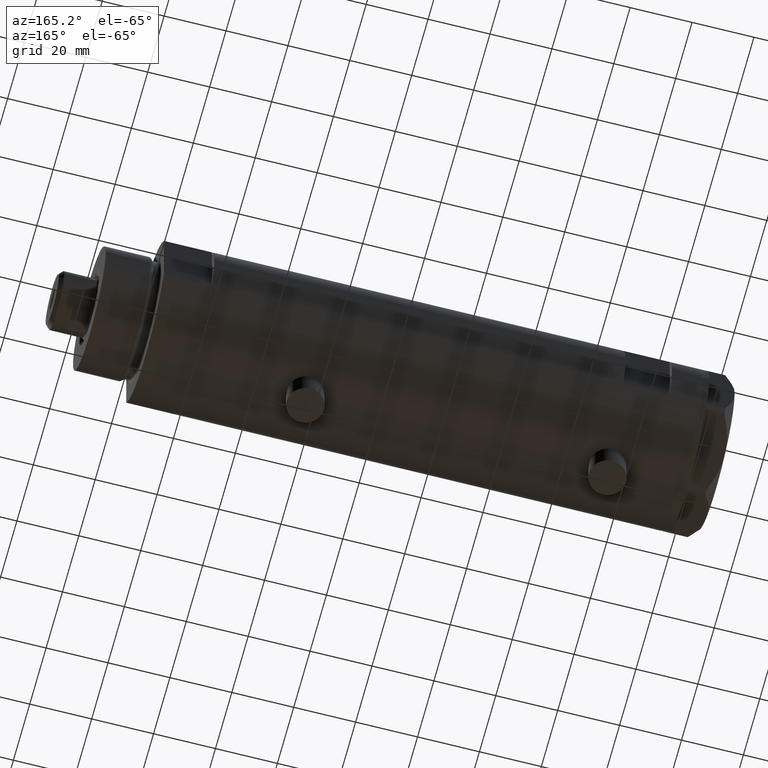
[diagram: clean part render]
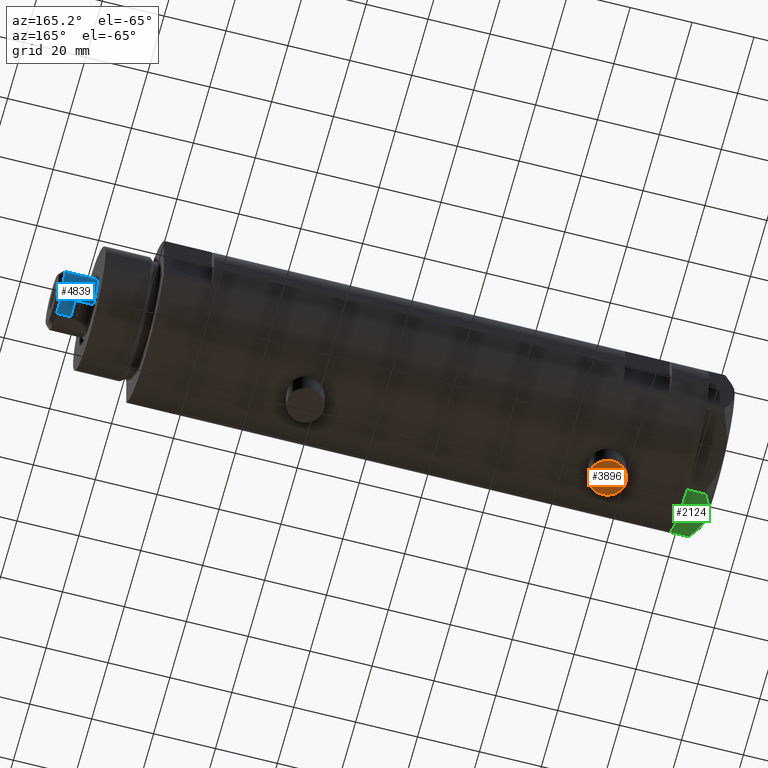
[diagram: same view with three faces highlighted in distinct colors, each labeled with its STEP entity id]
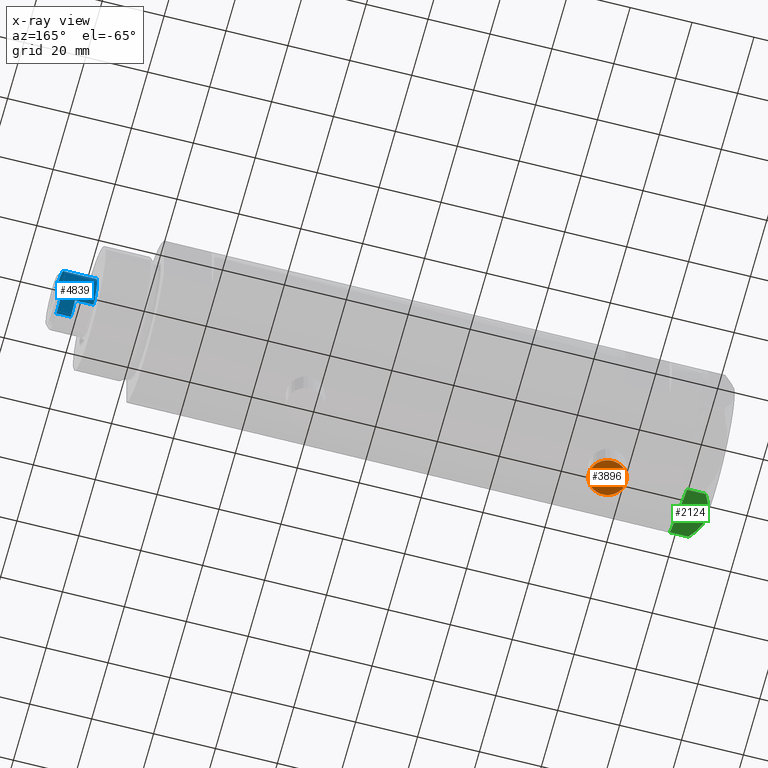
[diagram: x-ray of the same camera — body ghosted, the three highlighted faces saturated]
A machine part, auxiliary view with three faces highlighted in distinct colors.
The next image is the same camera in x-ray (body ghosted, the three faces saturated) — at least one of them is partly hidden behind the body in this view.
Their STEP definitions:

[orange] entity #3896 — the highlighted planar face has unit normal (-0, 0, -1).
#294 = EDGE_CURVE ( 'NONE', #1955, #1198, #4782, .T. ) ;
#433 = DIRECTION ( 'NONE',  ( 0.000000000000000000, 0.000000000000000000, 1.000000000000000000 ) ) ;
#666 = ORIENTED_EDGE ( 'NONE', *, *, #2968, .T. ) ;
#706 = CARTESIAN_POINT ( 'NONE',  ( -33.39999999999999858, 0.000000000000000000, 48.95000000000000995 ) ) ;
#797 = CARTESIAN_POINT ( 'NONE',  ( -33.39999999999999858, 0.000000000000000000, 54.95000000000000284 ) ) ;
#988 = AXIS2_PLACEMENT_3D ( 'NONE', #797, #1338, #433 ) ;
#1198 = VERTEX_POINT ( 'NONE', #706 ) ;
#1338 = DIRECTION ( 'NONE',  ( -1.000000000000000000, 0.000000000000000000, 0.000000000000000000 ) ) ;
#1493 = CIRCLE ( 'NONE', #2815, 5.999999999999998224 ) ;
#1849 = DIRECTION ( 'NONE',  ( -1.000000000000000000, 0.000000000000000000, 0.000000000000000000 ) ) ;
#1955 = VERTEX_POINT ( 'NONE', #2554 ) ;
#2223 = CARTESIAN_POINT ( 'NONE',  ( -33.39999999999999858, 0.000000000000000000, 54.95000000000000284 ) ) ;
#2554 = CARTESIAN_POINT ( 'NONE',  ( -33.39999999999999858, 7.347880794884107903E-16, 60.95000000000000284 ) ) ;
#2787 = PLANE ( 'NONE',  #4188 ) ;
#2815 = AXIS2_PLACEMENT_3D ( 'NONE', #2223, #1849, #3369 ) ;
#2968 = EDGE_CURVE ( 'NONE', #1198, #1955, #1493, .T. ) ;
#3009 = ORIENTED_EDGE ( 'NONE', *, *, #294, .T. ) ;
#3144 = DIRECTION ( 'NONE',  ( -1.000000000000000000, 0.000000000000000000, 0.000000000000000000 ) ) ;
#3369 = DIRECTION ( 'NONE',  ( 0.000000000000000000, 0.000000000000000000, 1.000000000000000000 ) ) ;
#3896 = ADVANCED_FACE ( 'NONE', ( #4255 ), #2787, .T. ) ;
#4188 = AXIS2_PLACEMENT_3D ( 'NONE', #4597, #3144, #4644 ) ;
#4230 = EDGE_LOOP ( 'NONE', ( #666, #3009 ) ) ;
#4255 = FACE_OUTER_BOUND ( 'NONE', #4230, .T. ) ;
#4597 = CARTESIAN_POINT ( 'NONE',  ( -33.39999999999999858, 0.000000000000000000, 54.95000000000000284 ) ) ;
#4644 = DIRECTION ( 'NONE',  ( 0.000000000000000000, 0.000000000000000000, 1.000000000000000000 ) ) ;
#4782 = CIRCLE ( 'NONE', #988, 5.999999999999998224 ) ;

[blue] entity #4839 — the highlighted cylindrical surface (edge-blend (fillet) strip) has radius 9.5 mm, axis along (-1, -0, 0).
#170 = ORIENTED_EDGE ( 'NONE', *, *, #3392, .T. ) ;
#208 = CARTESIAN_POINT ( 'NONE',  ( 7.982950582334830791, 5.149999999999999467, 167.6000000000000227 ) ) ;
#297 = CIRCLE ( 'NONE', #2741, 9.500000000000001776 ) ;
#341 = DIRECTION ( 'NONE',  ( -0.000000000000000000, -0.000000000000000000, -1.000000000000000000 ) ) ;
#403 = DIRECTION ( 'NONE',  ( 1.000000000000000000, 0.000000000000000000, 0.000000000000000000 ) ) ;
#455 = CIRCLE ( 'NONE', #762, 9.500000000000000000 ) ;
#509 = VERTEX_POINT ( 'NONE', #1227 ) ;
#689 = DIRECTION ( 'NONE',  ( 1.000000000000000000, 0.000000000000000000, 0.000000000000000000 ) ) ;
#717 = EDGE_CURVE ( 'NONE', #4173, #3285, #1473, .T. ) ;
#762 = AXIS2_PLACEMENT_3D ( 'NONE', #1994, #2046, #4704 ) ;
#801 = VERTEX_POINT ( 'NONE', #2662 ) ;
#839 = CARTESIAN_POINT ( 'NONE',  ( 0.000000000000000000, 0.000000000000000000, 173.6000000000000227 ) ) ;
#906 = VECTOR ( 'NONE', #3706, 1000.000000000000000 ) ;
#1143 = EDGE_CURVE ( 'NONE', #4628, #3285, #1474, .T. ) ;
#1227 = CARTESIAN_POINT ( 'NONE',  ( 9.500000000000000000, 1.163414459189985485E-15, 173.6000000000000227 ) ) ;
#1236 = VERTEX_POINT ( 'NONE', #4078 ) ;
#1313 = LINE ( 'NONE', #2431, #2436 ) ;
#1423 = CARTESIAN_POINT ( 'NONE',  ( -7.982950582334830791, 5.149999999999999467, 173.6000000000000227 ) ) ;
#1473 = CIRCLE ( 'NONE', #3125, 9.500000000000023093 ) ;
#1474 = LINE ( 'NONE', #2532, #906 ) ;
#1495 = VECTOR ( 'NONE', #341, 1000.000000000000000 ) ;
#1707 = ORIENTED_EDGE ( 'NONE', *, *, #2224, .T. ) ;
#1708 = LINE ( 'NONE', #3647, #3071 ) ;
#1718 = ORIENTED_EDGE ( 'NONE', *, *, #717, .T. ) ;
#1729 = AXIS2_PLACEMENT_3D ( 'NONE', #839, #3895, #1993 ) ;
#1796 = LINE ( 'NONE', #2268, #1495 ) ;
#1845 = DIRECTION ( 'NONE',  ( 0.000000000000000000, 0.000000000000000000, 1.000000000000000000 ) ) ;
#1893 = ORIENTED_EDGE ( 'NONE', *, *, #3082, .T. ) ;
#1925 = DIRECTION ( 'NONE',  ( 1.000000000000000000, 0.000000000000000000, 0.000000000000000000 ) ) ;
#1956 = AXIS2_PLACEMENT_3D ( 'NONE', #4092, #1845, #689 ) ;
#1979 = FACE_OUTER_BOUND ( 'NONE', #2905, .T. ) ;
#1993 = DIRECTION ( 'NONE',  ( -1.000000000000000000, 0.000000000000000000, 0.000000000000000000 ) ) ;
#1994 = CARTESIAN_POINT ( 'NONE',  ( 0.000000000000000000, 0.000000000000000000, 173.6000000000000227 ) ) ;
#2046 = DIRECTION ( 'NONE',  ( 0.000000000000000000, 0.000000000000000000, 1.000000000000000000 ) ) ;
#2224 = EDGE_CURVE ( 'NONE', #509, #801, #455, .T. ) ;
#2268 = CARTESIAN_POINT ( 'NONE',  ( -9.500000000000001776, 0.000000000000000000, 173.6000000000000227 ) ) ;
#2431 = CARTESIAN_POINT ( 'NONE',  ( 9.500000000000001776, 1.163414459189985682E-15, 173.6000000000000227 ) ) ;
#2436 = VECTOR ( 'NONE', #4752, 1000.000000000000000 ) ;
#2488 = CARTESIAN_POINT ( 'NONE',  ( 9.500000000000001776, 1.163414459189985682E-15, 178.2000000000000171 ) ) ;
#2532 = CARTESIAN_POINT ( 'NONE',  ( -7.982950582334830791, 5.149999999999999467, 173.6000000000000227 ) ) ;
#2662 = CARTESIAN_POINT ( 'NONE',  ( 7.982950582334830791, 5.149999999999999467, 173.6000000000000227 ) ) ;
#2690 = DIRECTION ( 'NONE',  ( 0.000000000000000000, 0.000000000000000000, 1.000000000000000000 ) ) ;
#2708 = ORIENTED_EDGE ( 'NONE', *, *, #4149, .T. ) ;
#2738 = CARTESIAN_POINT ( 'NONE',  ( 0.000000000000000000, 0.000000000000000000, 178.2000000000000171 ) ) ;
#2741 = AXIS2_PLACEMENT_3D ( 'NONE', #2738, #4666, #1925 ) ;
#2745 = VERTEX_POINT ( 'NONE', #2488 ) ;
#2905 = EDGE_LOOP ( 'NONE', ( #1893, #2708, #1707, #3006, #1718, #3354, #170, #3433 ) ) ;
#3006 = ORIENTED_EDGE ( 'NONE', *, *, #4153, .T. ) ;
#3071 = VECTOR ( 'NONE', #3992, 1000.000000000000000 ) ;
#3082 = EDGE_CURVE ( 'NONE', #4059, #2745, #297, .T. ) ;
#3125 = AXIS2_PLACEMENT_3D ( 'NONE', #3800, #2690, #403 ) ;
#3231 = EDGE_CURVE ( 'NONE', #4059, #1236, #1796, .T. ) ;
#3285 = VERTEX_POINT ( 'NONE', #4844 ) ;
#3354 = ORIENTED_EDGE ( 'NONE', *, *, #1143, .F. ) ;
#3392 = EDGE_CURVE ( 'NONE', #4628, #1236, #3471, .T. ) ;
#3433 = ORIENTED_EDGE ( 'NONE', *, *, #3231, .F. ) ;
#3471 = CIRCLE ( 'NONE', #1956, 9.500000000000000000 ) ;
#3647 = CARTESIAN_POINT ( 'NONE',  ( 7.982950582334830791, 5.149999999999999467, 173.6000000000000227 ) ) ;
#3665 = CARTESIAN_POINT ( 'NONE',  ( -9.500000000000001776, 0.000000000000000000, 178.2000000000000171 ) ) ;
#3706 = DIRECTION ( 'NONE',  ( -0.000000000000000000, -0.000000000000000000, -1.000000000000000000 ) ) ;
#3800 = CARTESIAN_POINT ( 'NONE',  ( 0.000000000000000000, 0.000000000000000000, 167.6000000000000227 ) ) ;
#3895 = DIRECTION ( 'NONE',  ( -0.000000000000000000, -0.000000000000000000, -1.000000000000000000 ) ) ;
#3992 = DIRECTION ( 'NONE',  ( -0.000000000000000000, -0.000000000000000000, -1.000000000000000000 ) ) ;
#4059 = VERTEX_POINT ( 'NONE', #3665 ) ;
#4078 = CARTESIAN_POINT ( 'NONE',  ( -9.500000000000000000, 0.000000000000000000, 173.6000000000000227 ) ) ;
#4092 = CARTESIAN_POINT ( 'NONE',  ( 0.000000000000000000, 0.000000000000000000, 173.6000000000000227 ) ) ;
#4149 = EDGE_CURVE ( 'NONE', #2745, #509, #1313, .T. ) ;
#4153 = EDGE_CURVE ( 'NONE', #801, #4173, #1708, .T. ) ;
#4173 = VERTEX_POINT ( 'NONE', #208 ) ;
#4600 = CYLINDRICAL_SURFACE ( 'NONE', #1729, 9.500000000000001776 ) ;
#4628 = VERTEX_POINT ( 'NONE', #1423 ) ;
#4666 = DIRECTION ( 'NONE',  ( 0.000000000000000000, 0.000000000000000000, -1.000000000000000000 ) ) ;
#4704 = DIRECTION ( 'NONE',  ( 1.000000000000000000, 0.000000000000000000, 0.000000000000000000 ) ) ;
#4752 = DIRECTION ( 'NONE',  ( -0.000000000000000000, -0.000000000000000000, -1.000000000000000000 ) ) ;
#4839 = ADVANCED_FACE ( 'NONE', ( #1979 ), #4600, .T. ) ;
#4844 = CARTESIAN_POINT ( 'NONE',  ( -7.982950582334829015, 5.150000000000040323, 167.6000000000000227 ) ) ;

[green] entity #2124 — the highlighted planar face has unit normal (0, 0.5, 0.866).
#29 = LINE ( 'NONE', #1886, #161 ) ;
#129 = CARTESIAN_POINT ( 'NONE',  ( -22.03005154776142760, 13.83905619136131904, 0.000000000000000000 ) ) ;
#161 = VECTOR ( 'NONE', #3736, 1000.000000000000000 ) ;
#167 = B_SPLINE_CURVE_WITH_KNOTS ( 'NONE', 3,
 ( #2127, #2212, #2236, #3916, #2329, #4605, #3898, #2120, #971, #3993 ),
 .UNSPECIFIED., .F., .F.,
 ( 4, 2, 2, 2, 4 ),
 ( 0.001228959670438516723, 0.007497079744270820564, 0.01063113978118697227, 0.01219816979964504812, 0.01376519981810312397 ),
 .UNSPECIFIED. ) ;
#171 = VERTEX_POINT ( 'NONE', #1527 ) ;
#228 = VERTEX_POINT ( 'NONE', #2647 ) ;
#359 = ORIENTED_EDGE ( 'NONE', *, *, #4580, .F. ) ;
#436 = CARTESIAN_POINT ( 'NONE',  ( -0.9699484522385775076, 25.99811238272273783, 9.000000000000000000 ) ) ;
#490 = VERTEX_POINT ( 'NONE', #129 ) ;
#521 = B_SPLINE_CURVE_WITH_KNOTS ( 'NONE', 3,
 ( #3959, #4323, #1748, #621, #931, #2520, #3213, #4746, #4715, #2473 ),
 .UNSPECIFIED., .F., .F.,
 ( 4, 2, 2, 2, 4 ),
 ( 0.01376519981810312397, 0.01998941321701588544, 0.02154546656674408145, 0.02310151991647227399, 0.02621362661592866600 ),
 .UNSPECIFIED. ) ;
#621 = CARTESIAN_POINT ( 'NONE',  ( -17.32831362639718975, 16.55360584592005679, 8.040681765829335248 ) ) ;
#724 = EDGE_CURVE ( 'NONE', #1786, #3246, #2622, .T. ) ;
#752 = VECTOR ( 'NONE', #2298, 1000.000000000000227 ) ;
#775 = DIRECTION ( 'NONE',  ( 0.000000000000000000, 0.000000000000000000, -1.000000000000000000 ) ) ;
#812 = CARTESIAN_POINT ( 'NONE',  ( 0.000000000000000000, 26.55811238272274366, 0.000000000000000000 ) ) ;
#820 = LINE ( 'NONE', #436, #1314 ) ;
#888 = EDGE_LOOP ( 'NONE', ( #2587, #3189, #2151, #359, #1659, #4421, #2547 ) ) ;
#931 = CARTESIAN_POINT ( 'NONE',  ( -17.77001848220191604, 16.29858742851882170, 7.892128867758443356 ) ) ;
#971 = CARTESIAN_POINT ( 'NONE',  ( -11.04134848610939557, 20.18338686205100885, 9.000000000000094147 ) ) ;
#1314 = VECTOR ( 'NONE', #775, 1000.000000000000000 ) ;
#1348 = CARTESIAN_POINT ( 'NONE',  ( 0.000000000000000000, 26.55811238272274366, 9.000000000000000000 ) ) ;
#1527 = CARTESIAN_POINT ( 'NONE',  ( -22.03005154776144181, 13.83905619136131371, 5.983800287807625295 ) ) ;
#1659 = ORIENTED_EDGE ( 'NONE', *, *, #2378, .T. ) ;
#1683 = DIRECTION ( 'NONE',  ( 0.5000000000000009992, -0.8660254037844381525, 0.000000000000000000 ) ) ;
#1748 = CARTESIAN_POINT ( 'NONE',  ( -15.11535457301033247, 17.83125835109856183, 8.707651728477001640 ) ) ;
#1780 = AXIS2_PLACEMENT_3D ( 'NONE', #1348, #1683, #3174 ) ;
#1786 = VERTEX_POINT ( 'NONE', #2343 ) ;
#1886 = CARTESIAN_POINT ( 'NONE',  ( -22.03005154776143115, 13.83905619136131726, 9.000000000000000000 ) ) ;
#2120 = CARTESIAN_POINT ( 'NONE',  ( -10.58093321976963175, 20.44920774001128549, 8.981686407609499767 ) ) ;
#2124 = ADVANCED_FACE ( 'NONE', ( #2774 ), #4287, .F. ) ;
#2127 = CARTESIAN_POINT ( 'NONE',  ( -0.9699484522384356211, 25.99811238272282310, 5.983800287807548912 ) ) ;
#2151 = ORIENTED_EDGE ( 'NONE', *, *, #3167, .F. ) ;
#2212 = CARTESIAN_POINT ( 'NONE',  ( -2.626494320835632390, 25.04170517956325881, 6.877782426143454586 ) ) ;
#2236 = CARTESIAN_POINT ( 'NONE',  ( -4.320186229909880105, 24.06385169993494699, 7.629374868826106493 ) ) ;
#2298 = DIRECTION ( 'NONE',  ( -0.8660254037844380415, -0.5000000000000008882, 0.000000000000000000 ) ) ;
#2323 = DIRECTION ( 'NONE',  ( -0.8660254037844380415, -0.5000000000000008882, 0.000000000000000000 ) ) ;
#2329 = CARTESIAN_POINT ( 'NONE',  ( -7.836767740116576952, 22.03355241838985279, 8.637313967156947214 ) ) ;
#2343 = CARTESIAN_POINT ( 'NONE',  ( -0.9699484522385772856, 25.99811238272273783, 0.000000000000000000 ) ) ;
#2378 = EDGE_CURVE ( 'NONE', #228, #1786, #820, .T. ) ;
#2413 = VERTEX_POINT ( 'NONE', #4233 ) ;
#2473 = CARTESIAN_POINT ( 'NONE',  ( -22.03005154776144181, 13.83905619136131371, 5.983800287807625295 ) ) ;
#2520 = CARTESIAN_POINT ( 'NONE',  ( -18.64279229058394804, 15.79469123530778951, 7.570552255229721084 ) ) ;
#2547 = ORIENTED_EDGE ( 'NONE', *, *, #4344, .T. ) ;
#2587 = ORIENTED_EDGE ( 'NONE', *, *, #4774, .T. ) ;
#2622 = LINE ( 'NONE', #812, #752 ) ;
#2647 = CARTESIAN_POINT ( 'NONE',  ( -0.9699484522384356211, 25.99811238272282310, 5.983800287807548912 ) ) ;
#2774 = FACE_OUTER_BOUND ( 'NONE', #888, .T. ) ;
#3140 = CARTESIAN_POINT ( 'NONE',  ( 0.000000000000000000, 26.55811238272274366, 0.000000000000000000 ) ) ;
#3167 = EDGE_CURVE ( 'NONE', #2413, #171, #521, .T. ) ;
#3174 = DIRECTION ( 'NONE',  ( 0.8660254037844380415, 0.5000000000000008882, 0.000000000000000000 ) ) ;
#3189 = ORIENTED_EDGE ( 'NONE', *, *, #4256, .T. ) ;
#3213 = CARTESIAN_POINT ( 'NONE',  ( -19.07486218896994856, 15.54523556316589961, 7.397272853991406549 ) ) ;
#3246 = VERTEX_POINT ( 'NONE', #4862 ) ;
#3404 = VECTOR ( 'NONE', #2323, 1000.000000000000227 ) ;
#3547 = CARTESIAN_POINT ( 'NONE',  ( 0.000000000000000000, 26.55811238272274366, 0.000000000000000000 ) ) ;
#3736 = DIRECTION ( 'NONE',  ( 0.000000000000000000, 0.000000000000000000, 1.000000000000000000 ) ) ;
#3898 = CARTESIAN_POINT ( 'NONE',  ( -9.656518383329848021, 20.98291889467267168, 8.907842277728436287 ) ) ;
#3916 = CARTESIAN_POINT ( 'NONE',  ( -6.946777556903624529, 22.54738849024398206, 8.426899937603780089 ) ) ;
#3945 = VECTOR ( 'NONE', #4571, 1000.000000000000227 ) ;
#3959 = CARTESIAN_POINT ( 'NONE',  ( -11.50000000000004441, 19.91858428704211548, 9.000000000000000000 ) ) ;
#3993 = CARTESIAN_POINT ( 'NONE',  ( -11.50000000000004441, 19.91858428704211548, 9.000000000000000000 ) ) ;
#4160 = LINE ( 'NONE', #3140, #3945 ) ;
#4233 = CARTESIAN_POINT ( 'NONE',  ( -11.50000000000004441, 19.91858428704211548, 9.000000000000000000 ) ) ;
#4256 = EDGE_CURVE ( 'NONE', #490, #171, #29, .T. ) ;
#4261 = LINE ( 'NONE', #3547, #3404 ) ;
#4287 = PLANE ( 'NONE',  #1780 ) ;
#4323 = CARTESIAN_POINT ( 'NONE',  ( -13.32175508098984729, 18.86679350063496585, 9.000000000000088818 ) ) ;
#4344 = EDGE_CURVE ( 'NONE', #3246, #4599, #4160, .T. ) ;
#4384 = CARTESIAN_POINT ( 'NONE',  ( -22.00000000000008171, 13.85640646055089498, 0.000000000000000000 ) ) ;
#4421 = ORIENTED_EDGE ( 'NONE', *, *, #724, .T. ) ;
#4571 = DIRECTION ( 'NONE',  ( -0.8660254037844380415, -0.5000000000000008882, 0.000000000000000000 ) ) ;
#4580 = EDGE_CURVE ( 'NONE', #228, #2413, #167, .T. ) ;
#4599 = VERTEX_POINT ( 'NONE', #4384 ) ;
#4605 = CARTESIAN_POINT ( 'NONE',  ( -9.197898616902920210, 21.24770314027494678, 8.852712638955802404 ) ) ;
#4715 = CARTESIAN_POINT ( 'NONE',  ( -21.20080365460318461, 14.31782268570115768, 6.431317509509388408 ) ) ;
#4746 = CARTESIAN_POINT ( 'NONE',  ( -20.35958612119326361, 14.80349985506240884, 6.844201024438374859 ) ) ;
#4774 = EDGE_CURVE ( 'NONE', #4599, #490, #4261, .T. ) ;
#4862 = CARTESIAN_POINT ( 'NONE',  ( -0.9999999999999089617, 25.98076211353316367, 0.000000000000000000 ) ) ;